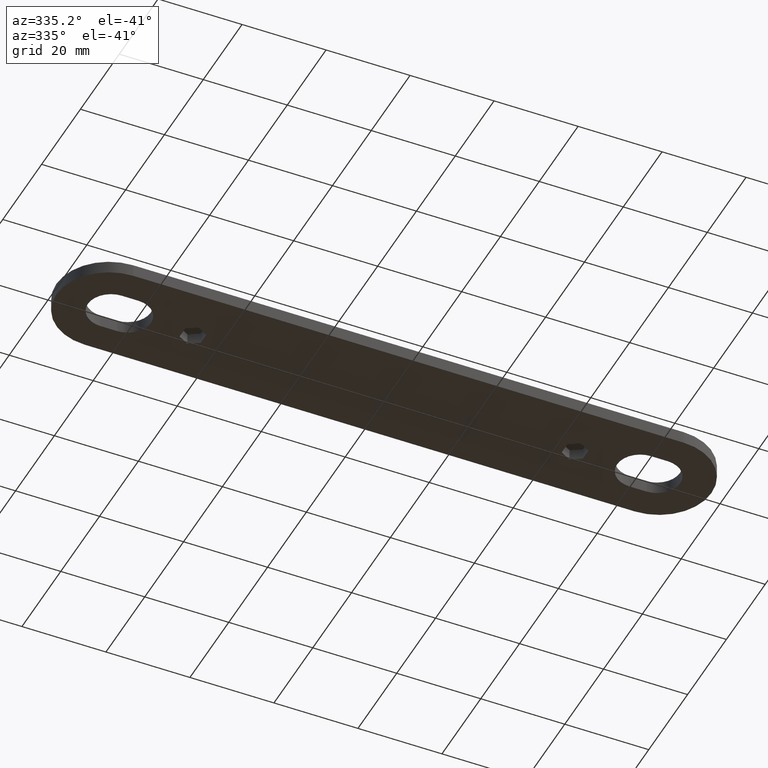
[diagram: clean part render]
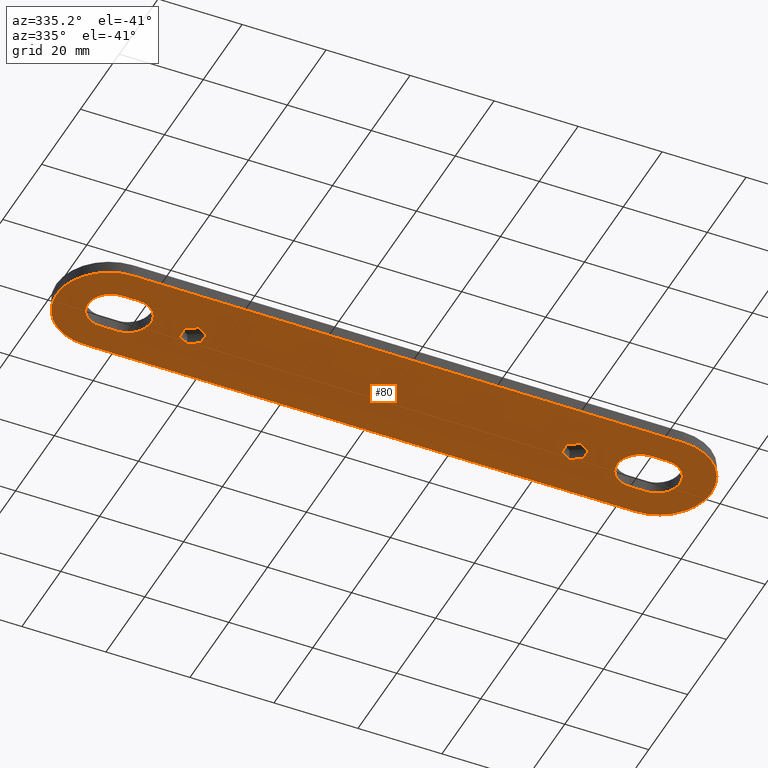
[diagram: same view with one face highlighted and labeled with its STEP entity id]
A machine part, auxiliary view. The second image highlights one B-rep face of the part: STEP entity #80.
In plain terms, the highlighted planar face has unit normal (0, -0, -1).
Its self-contained STEP definition (entity closure, byte-faithful):
#80 = ADVANCED_FACE( '', ( #166, #167, #168, #169, #170 ), #171, .T. );
#166 = FACE_BOUND( '', #323, .T. );
#167 = FACE_BOUND( '', #324, .T. );
#168 = FACE_BOUND( '', #325, .T. );
#169 = FACE_BOUND( '', #326, .T. );
#170 = FACE_OUTER_BOUND( '', #327, .T. );
#171 = PLANE( '', #328 );
#323 = EDGE_LOOP( '', ( #540, #541, #542, #543, #544, #545 ) );
#324 = EDGE_LOOP( '', ( #546, #547, #548, #549, #550, #551 ) );
#325 = EDGE_LOOP( '', ( #552, #553, #554, #555, #556, #557 ) );
#326 = EDGE_LOOP( '', ( #558, #559, #560, #561, #562, #563 ) );
#327 = EDGE_LOOP( '', ( #564, #565, #566, #567, #568, #569 ) );
#328 = AXIS2_PLACEMENT_3D( '', #570, #571, #572 );
#540 = ORIENTED_EDGE( '', *, *, #1089, .F. );
#541 = ORIENTED_EDGE( '', *, *, #1086, .F. );
#542 = ORIENTED_EDGE( '', *, *, #1090, .F. );
#543 = ORIENTED_EDGE( '', *, *, #1091, .F. );
#544 = ORIENTED_EDGE( '', *, *, #1092, .F. );
#545 = ORIENTED_EDGE( '', *, *, #1093, .F. );
#546 = ORIENTED_EDGE( '', *, *, #1094, .F. );
#547 = ORIENTED_EDGE( '', *, *, #1095, .F. );
#548 = ORIENTED_EDGE( '', *, *, #1096, .F. );
#549 = ORIENTED_EDGE( '', *, *, #1097, .F. );
#550 = ORIENTED_EDGE( '', *, *, #1098, .F. );
#551 = ORIENTED_EDGE( '', *, *, #1099, .F. );
#552 = ORIENTED_EDGE( '', *, *, #1100, .F. );
#553 = ORIENTED_EDGE( '', *, *, #1101, .F. );
#554 = ORIENTED_EDGE( '', *, *, #1102, .F. );
#555 = ORIENTED_EDGE( '', *, *, #1103, .F. );
#556 = ORIENTED_EDGE( '', *, *, #1104, .F. );
#557 = ORIENTED_EDGE( '', *, *, #1105, .F. );
#558 = ORIENTED_EDGE( '', *, *, #1106, .T. );
#559 = ORIENTED_EDGE( '', *, *, #1107, .T. );
#560 = ORIENTED_EDGE( '', *, *, #1108, .T. );
#561 = ORIENTED_EDGE( '', *, *, #1109, .T. );
#562 = ORIENTED_EDGE( '', *, *, #1110, .T. );
#563 = ORIENTED_EDGE( '', *, *, #1111, .T. );
#564 = ORIENTED_EDGE( '', *, *, #1079, .T. );
#565 = ORIENTED_EDGE( '', *, *, #1112, .T. );
#566 = ORIENTED_EDGE( '', *, *, #1113, .T. );
#567 = ORIENTED_EDGE( '', *, *, #1114, .T. );
#568 = ORIENTED_EDGE( '', *, *, #1115, .T. );
#569 = ORIENTED_EDGE( '', *, *, #1116, .T. );
#570 = CARTESIAN_POINT( '', ( 65.5000000000000, 8.67361737988403E-015, -4.16333634234434E-014 ) );
#571 = DIRECTION( '', ( 4.59177480789956E-047, -6.12303176911189E-017, -1.00000000000000 ) );
#572 = DIRECTION( '', ( 5.39030083589187E-015, 1.00000000000000, -6.12303176911189E-017 ) );
#1079 = EDGE_CURVE( '', #1306, #1304, #1307, .T. );
#1086 = EDGE_CURVE( '', #1317, #1318, #1319, .T. );
#1089 = EDGE_CURVE( '', #1318, #1322, #1323, .F. );
#1090 = EDGE_CURVE( '', #1324, #1317, #1325, .F. );
#1091 = EDGE_CURVE( '', #1326, #1324, #1327, .F. );
#1092 = EDGE_CURVE( '', #1328, #1326, #1329, .T. );
#1093 = EDGE_CURVE( '', #1322, #1328, #1330, .F. );
#1094 = EDGE_CURVE( '', #1331, #1332, #1333, .T. );
#1095 = EDGE_CURVE( '', #1334, #1331, #1335, .T. );
#1096 = EDGE_CURVE( '', #1336, #1334, #1337, .T. );
#1097 = EDGE_CURVE( '', #1338, #1336, #1339, .T. );
#1098 = EDGE_CURVE( '', #1340, #1338, #1341, .T. );
#1099 = EDGE_CURVE( '', #1332, #1340, #1342, .T. );
#1100 = EDGE_CURVE( '', #1343, #1344, #1345, .T. );
#1101 = EDGE_CURVE( '', #1346, #1343, #1347, .T. );
#1102 = EDGE_CURVE( '', #1348, #1346, #1349, .T. );
#1103 = EDGE_CURVE( '', #1350, #1348, #1351, .T. );
#1104 = EDGE_CURVE( '', #1352, #1350, #1353, .T. );
#1105 = EDGE_CURVE( '', #1344, #1352, #1354, .T. );
#1106 = EDGE_CURVE( '', #1355, #1356, #1357, .T. );
#1107 = EDGE_CURVE( '', #1356, #1358, #1359, .T. );
#1108 = EDGE_CURVE( '', #1358, #1360, #1361, .T. );
#1109 = EDGE_CURVE( '', #1360, #1362, #1363, .F. );
#1110 = EDGE_CURVE( '', #1362, #1364, #1365, .T. );
#1111 = EDGE_CURVE( '', #1364, #1355, #1366, .T. );
#1112 = EDGE_CURVE( '', #1304, #1367, #1368, .T. );
#1113 = EDGE_CURVE( '', #1367, #1369, #1370, .T. );
#1114 = EDGE_CURVE( '', #1369, #1371, #1372, .T. );
#1115 = EDGE_CURVE( '', #1371, #1373, #1374, .T. );
#1116 = EDGE_CURVE( '', #1373, #1306, #1375, .T. );
#1304 = VERTEX_POINT( '', #1634 );
#1306 = VERTEX_POINT( '', #1637 );
#1307 = LINE( '', #1638, #1639 );
#1317 = VERTEX_POINT( '', #1655 );
#1318 = VERTEX_POINT( '', #1656 );
#1319 = LINE( '', #1657, #1658 );
#1322 = VERTEX_POINT( '', #1663 );
#1323 = CIRCLE( '', #1664, 5.50000000000000 );
#1324 = VERTEX_POINT( '', #1665 );
#1325 = CIRCLE( '', #1666, 5.50000000000012 );
#1326 = VERTEX_POINT( '', #1667 );
#1327 = CIRCLE( '', #1668, 5.50000000000000 );
#1328 = VERTEX_POINT( '', #1669 );
#1329 = LINE( '', #1670, #1671 );
#1330 = CIRCLE( '', #1672, 5.50000000000011 );
#1331 = VERTEX_POINT( '', #1673 );
#1332 = VERTEX_POINT( '', #1674 );
#1333 = LINE( '', #1675, #1676 );
#1334 = VERTEX_POINT( '', #1677 );
#1335 = LINE( '', #1678, #1679 );
#1336 = VERTEX_POINT( '', #1680 );
#1337 = LINE( '', #1681, #1682 );
#1338 = VERTEX_POINT( '', #1683 );
#1339 = LINE( '', #1684, #1685 );
#1340 = VERTEX_POINT( '', #1686 );
#1341 = LINE( '', #1687, #1688 );
#1342 = LINE( '', #1689, #1690 );
#1343 = VERTEX_POINT( '', #1691 );
#1344 = VERTEX_POINT( '', #1692 );
#1345 = LINE( '', #1693, #1694 );
#1346 = VERTEX_POINT( '', #1695 );
#1347 = LINE( '', #1696, #1697 );
#1348 = VERTEX_POINT( '', #1698 );
#1349 = LINE( '', #1699, #1700 );
#1350 = VERTEX_POINT( '', #1701 );
#1351 = LINE( '', #1702, #1703 );
#1352 = VERTEX_POINT( '', #1704 );
#1353 = LINE( '', #1705, #1706 );
#1354 = LINE( '', #1707, #1708 );
#1355 = VERTEX_POINT( '', #1709 );
#1356 = VERTEX_POINT( '', #1710 );
#1357 = LINE( '', #1711, #1712 );
#1358 = VERTEX_POINT( '', #1713 );
#1359 = CIRCLE( '', #1714, 5.50000000000006 );
#1360 = VERTEX_POINT( '', #1715 );
#1361 = CIRCLE( '', #1716, 5.50000000000000 );
#1362 = VERTEX_POINT( '', #1717 );
#1363 = LINE( '', #1718, #1719 );
#1364 = VERTEX_POINT( '', #1720 );
#1365 = CIRCLE( '', #1721, 5.50000000000006 );
#1366 = CIRCLE( '', #1722, 5.50000000000000 );
#1367 = VERTEX_POINT( '', #1723 );
#1368 = CIRCLE( '', #1724, 12.5000000000000 );
#1369 = VERTEX_POINT( '', #1725 );
#1370 = CIRCLE( '', #1726, 12.5000000000000 );
#1371 = VERTEX_POINT( '', #1727 );
#1372 = LINE( '', #1728, #1729 );
#1373 = VERTEX_POINT( '', #1730 );
#1374 = CIRCLE( '', #1731, 12.5000000000000 );
#1375 = CIRCLE( '', #1732, 12.5000000000000 );
#1634 = CARTESIAN_POINT( '', ( 65.5000000000001, 12.5000000000000, -4.23987423945824E-014 ) );
#1637 = CARTESIAN_POINT( '', ( -65.4999999999999, 12.5000000000000, -4.23987423945824E-014 ) );
#1638 = CARTESIAN_POINT( '', ( -65.4999999999999, 12.5000000000000, -4.23987423945824E-014 ) );
#1639 = VECTOR( '', #2031, 1000.00000000000 );
#1655 = CARTESIAN_POINT( '', ( -65.0000000000006, 5.50000000000022, -4.19701301707445E-014 ) );
#1656 = CARTESIAN_POINT( '', ( -61.0000000000004, 5.50000000000022, -4.19701301707445E-014 ) );
#1657 = CARTESIAN_POINT( '', ( -61.0000000000004, 5.50000000000022, -4.19701301707445E-014 ) );
#1658 = VECTOR( '', #2038, 1000.00000000000 );
#1663 = CARTESIAN_POINT( '', ( -55.5000000000004, -1.05127479439430E-013, -4.16333634234434E-014 ) );
#1664 = AXIS2_PLACEMENT_3D( '', #2041, #2042, #2043 );
#1665 = CARTESIAN_POINT( '', ( -70.5000000000007, 1.17835833231475E-013, -4.16333634234434E-014 ) );
#1666 = AXIS2_PLACEMENT_3D( '', #2044, #2045, #2046 );
#1667 = CARTESIAN_POINT( '', ( -65.0000000000006, -5.50000000000022, -4.12965966761422E-014 ) );
#1668 = AXIS2_PLACEMENT_3D( '', #2047, #2048, #2049 );
#1669 = CARTESIAN_POINT( '', ( -61.0000000000004, -5.50000000000022, -4.12965966761422E-014 ) );
#1670 = CARTESIAN_POINT( '', ( -65.0000000000006, -5.50000000000022, -4.12965966761422E-014 ) );
#1671 = VECTOR( '', #2050, 1000.00000000000 );
#1672 = AXIS2_PLACEMENT_3D( '', #2051, #2052, #2053 );
#1673 = CARTESIAN_POINT( '', ( 45.5000000000001, 2.88675134594816, -2.79323323176366E-014 ) );
#1674 = CARTESIAN_POINT( '', ( 48.0000000000001, 1.44337567297410, -2.78439539666328E-014 ) );
#1675 = CARTESIAN_POINT( '', ( 50.5000000000002, 1.40946282423116E-014, -2.77555756156289E-014 ) );
#1676 = VECTOR( '', #2054, 1000.00000000000 );
#1677 = CARTESIAN_POINT( '', ( 43.0000000000001, 1.44337567297408, -2.78439539666328E-014 ) );
#1678 = CARTESIAN_POINT( '', ( 48.0000000000001, 4.33012701892223, -2.80207106686404E-014 ) );
#1679 = VECTOR( '', #2055, 1000.00000000000 );
#1680 = CARTESIAN_POINT( '', ( 43.0000000000001, -1.44337567297407, -2.76671972646251E-014 ) );
#1681 = CARTESIAN_POINT( '', ( 43.0000000000001, 1.36782946080771E-014, -2.77555756156289E-014 ) );
#1682 = VECTOR( '', #2056, 1000.00000000000 );
#1683 = CARTESIAN_POINT( '', ( 45.5000000000001, -2.88675134594813, -2.75788189136212E-014 ) );
#1684 = CARTESIAN_POINT( '', ( 48.0000000000001, -4.33012701892221, -2.74904405626174E-014 ) );
#1685 = VECTOR( '', #2057, 1000.00000000000 );
#1686 = CARTESIAN_POINT( '', ( 48.0000000000001, -1.44337567297406, -2.76671972646251E-014 ) );
#1687 = CARTESIAN_POINT( '', ( 50.5000000000001, 2.01048020158368E-014, -2.77555756156289E-014 ) );
#1688 = VECTOR( '', #2058, 1000.00000000000 );
#1689 = CARTESIAN_POINT( '', ( 48.0000000000001, 1.34007388519208E-014, -2.77555756156289E-014 ) );
#1690 = VECTOR( '', #2059, 1000.00000000000 );
#1691 = CARTESIAN_POINT( '', ( -45.5000000000001, 2.88675134594813, -2.79323323176366E-014 ) );
#1692 = CARTESIAN_POINT( '', ( -43.0000000000001, 1.44337567297406, -2.78439539666328E-014 ) );
#1693 = CARTESIAN_POINT( '', ( -40.5000000000001, -1.32699719143736E-014, -2.77555756156289E-014 ) );
#1694 = VECTOR( '', #2060, 1000.00000000000 );
#1695 = CARTESIAN_POINT( '', ( -48.0000000000001, 1.44337567297405, -2.78439539666327E-014 ) );
#1696 = CARTESIAN_POINT( '', ( -43.0000000000001, 4.33012701892220, -2.80207106686404E-014 ) );
#1697 = VECTOR( '', #2061, 1000.00000000000 );
#1698 = CARTESIAN_POINT( '', ( -48.0000000000001, -1.44337567297409, -2.76671972646251E-014 ) );
#1699 = CARTESIAN_POINT( '', ( -48.0000000000001, -1.25593979660721E-014, -2.77555756156289E-014 ) );
#1700 = VECTOR( '', #2062, 1000.00000000000 );
#1701 = CARTESIAN_POINT( '', ( -45.5000000000001, -2.88675134594816, -2.75788189136212E-014 ) );
#1702 = CARTESIAN_POINT( '', ( -43.0000000000001, -4.33012701892223, -2.74904405626174E-014 ) );
#1703 = VECTOR( '', #2063, 1000.00000000000 );
#1704 = CARTESIAN_POINT( '', ( -43.0000000000001, -1.44337567297409, -2.76671972646251E-014 ) );
#1705 = CARTESIAN_POINT( '', ( -40.5000000000001, -1.11100657145130E-014, -2.77555756156289E-014 ) );
#1706 = VECTOR( '', #2064, 1000.00000000000 );
#1707 = CARTESIAN_POINT( '', ( -43.0000000000001, -1.28369537222284E-014, -2.77555756156289E-014 ) );
#1708 = VECTOR( '', #2065, 1000.00000000000 );
#1709 = CARTESIAN_POINT( '', ( 61.0000000000004, -5.50000000000022, -4.12965966761422E-014 ) );
#1710 = CARTESIAN_POINT( '', ( 65.0000000000006, -5.50000000000024, -4.12965966761422E-014 ) );
#1711 = CARTESIAN_POINT( '', ( 65.5000000000000, -5.50000000000024, -4.12965966761422E-014 ) );
#1712 = VECTOR( '', #2066, 999.999999999999 );
#1713 = CARTESIAN_POINT( '', ( 70.5000000000006, -7.05322370062217E-014, -4.16333634234434E-014 ) );
#1714 = AXIS2_PLACEMENT_3D( '', #2067, #2068, #2069 );
#1715 = CARTESIAN_POINT( '', ( 65.0000000000006, 5.50000000000019, -4.19701301707445E-014 ) );
#1716 = AXIS2_PLACEMENT_3D( '', #2070, #2071, #2072 );
#1717 = CARTESIAN_POINT( '', ( 61.0000000000005, 5.50000000000020, -4.19701301707445E-014 ) );
#1718 = CARTESIAN_POINT( '', ( 65.5000000000001, 5.50000000000018, -4.19701301707445E-014 ) );
#1719 = VECTOR( '', #2073, 999.999999999999 );
#1720 = CARTESIAN_POINT( '', ( 55.5000000000004, 1.46898464258634E-013, -4.16333634234434E-014 ) );
#1721 = AXIS2_PLACEMENT_3D( '', #2074, #2075, #2076 );
#1722 = AXIS2_PLACEMENT_3D( '', #2077, #2078, #2079 );
#1723 = CARTESIAN_POINT( '', ( 78.0000000000000, 5.20417042793042E-015, -4.16333634234434E-014 ) );
#1724 = AXIS2_PLACEMENT_3D( '', #2080, #2081, #2082 );
#1725 = CARTESIAN_POINT( '', ( 65.5000000000001, -12.5000000000000, -4.08679844523044E-014 ) );
#1726 = AXIS2_PLACEMENT_3D( '', #2083, #2084, #2085 );
#1727 = CARTESIAN_POINT( '', ( -65.4999999999999, -12.5000000000000, -4.08679844523044E-014 ) );
#1728 = CARTESIAN_POINT( '', ( 65.5000000000001, -12.5000000000000, -4.08679844523044E-014 ) );
#1729 = VECTOR( '', #2086, 1000.00000000000 );
#1730 = CARTESIAN_POINT( '', ( -77.9999999999999, 1.56125112837913E-014, -4.16333634234434E-014 ) );
#1731 = AXIS2_PLACEMENT_3D( '', #2087, #2088, #2089 );
#1732 = AXIS2_PLACEMENT_3D( '', #2090, #2091, #2092 );
#2031 = DIRECTION( '', ( 1.00000000000000, -3.15544362088405E-030, 1.93208815363145E-046 ) );
#2038 = DIRECTION( '', ( 1.00000000000000, 1.15648231731786E-016, -7.08117796935337E-033 ) );
#2041 = CARTESIAN_POINT( '', ( -61.0000000000004, 2.26381413614973E-013, -4.16333634234434E-014 ) );
#2042 = DIRECTION( '', ( 0.000000000000000, 6.12303176911189E-017, 1.00000000000000 ) );
#2043 = DIRECTION( '', ( 0.000000000000000, -1.00000000000000, 6.12303176911189E-017 ) );
#2044 = CARTESIAN_POINT( '', ( -65.0000000000006, 1.17093834628434E-013, -4.16333634234434E-014 ) );
#2045 = DIRECTION( '', ( 0.000000000000000, 6.12303176911189E-017, 1.00000000000000 ) );
#2046 = DIRECTION( '', ( 0.000000000000000, -1.00000000000000, 6.12303176911189E-017 ) );
#2047 = CARTESIAN_POINT( '', ( -65.0000000000006, -2.26381413614973E-013, -4.16333634234434E-014 ) );
#2048 = DIRECTION( '', ( 0.000000000000000, 6.12303176911189E-017, 1.00000000000000 ) );
#2049 = DIRECTION( '', ( 0.000000000000000, -1.00000000000000, 6.12303176911189E-017 ) );
#2050 = DIRECTION( '', ( -1.00000000000000, -1.15648231731786E-016, 7.08117796935337E-033 ) );
#2051 = CARTESIAN_POINT( '', ( -61.0000000000004, -1.04950770296597E-013, -4.16333634234434E-014 ) );
#2052 = DIRECTION( '', ( 0.000000000000000, 6.12303176911189E-017, 1.00000000000000 ) );
#2053 = DIRECTION( '', ( 0.000000000000000, -1.00000000000000, 6.12303176911189E-017 ) );
#2054 = DIRECTION( '', ( 0.866025403784438, -0.500000000000001, 3.06151588455595E-017 ) );
#2055 = DIRECTION( '', ( 0.866025403784438, 0.500000000000001, -3.06151588455595E-017 ) );
#2056 = DIRECTION( '', ( -5.55111512312578E-017, 1.00000000000000, -6.12303176911189E-017 ) );
#2057 = DIRECTION( '', ( -0.866025403784438, 0.500000000000001, -3.06151588455595E-017 ) );
#2058 = DIRECTION( '', ( -0.866025403784438, -0.500000000000001, 3.06151588455595E-017 ) );
#2059 = DIRECTION( '', ( 2.77555756156289E-016, -1.00000000000000, 6.12303176911189E-017 ) );
#2060 = DIRECTION( '', ( 0.866025403784438, -0.500000000000001, 3.06151588455595E-017 ) );
#2061 = DIRECTION( '', ( 0.866025403784438, 0.500000000000001, -3.06151588455595E-017 ) );
#2062 = DIRECTION( '', ( -5.55111512312578E-017, 1.00000000000000, -6.12303176911189E-017 ) );
#2063 = DIRECTION( '', ( -0.866025403784438, 0.500000000000001, -3.06151588455595E-017 ) );
#2064 = DIRECTION( '', ( -0.866025403784438, -0.500000000000001, 3.06151588455595E-017 ) );
#2065 = DIRECTION( '', ( 2.77555756156289E-016, -1.00000000000000, 6.12303176911189E-017 ) );
#2066 = DIRECTION( '', ( 1.00000000000000, -5.39030083589187E-015, 3.30049832632363E-031 ) );
#2067 = CARTESIAN_POINT( '', ( 65.0000000000006, -1.90819582357449E-013, -4.16333634234434E-014 ) );
#2068 = DIRECTION( '', ( 0.000000000000000, 6.12303176911189E-017, 1.00000000000000 ) );
#2069 = DIRECTION( '', ( 0.000000000000000, -1.00000000000000, 6.12303176911189E-017 ) );
#2070 = CARTESIAN_POINT( '', ( 65.0000000000006, 2.11636264069170E-013, -4.16333634234434E-014 ) );
#2071 = DIRECTION( '', ( 0.000000000000000, 6.12303176911189E-017, 1.00000000000000 ) );
#2072 = DIRECTION( '', ( 0.000000000000000, -1.00000000000000, 6.12303176911189E-017 ) );
#2073 = DIRECTION( '', ( 1.00000000000000, -5.39030083589187E-015, 3.30049832632363E-031 ) );
#2074 = CARTESIAN_POINT( '', ( 61.0000000000004, 1.44849410244063E-013, -4.16333634234434E-014 ) );
#2075 = DIRECTION( '', ( 0.000000000000000, 6.12303176911189E-017, 1.00000000000000 ) );
#2076 = DIRECTION( '', ( 0.000000000000000, -1.00000000000000, 6.12303176911189E-017 ) );
#2077 = CARTESIAN_POINT( '', ( 61.0000000000004, -2.43728648374741E-013, -4.16333634234434E-014 ) );
#2078 = DIRECTION( '', ( 0.000000000000000, 6.12303176911189E-017, 1.00000000000000 ) );
#2079 = DIRECTION( '', ( 0.000000000000000, -1.00000000000000, 6.12303176911189E-017 ) );
#2080 = CARTESIAN_POINT( '', ( 65.5000000000000, 8.67361737988403E-015, -4.16333634234434E-014 ) );
#2081 = DIRECTION( '', ( 0.000000000000000, -6.12303176911189E-017, -1.00000000000000 ) );
#2082 = DIRECTION( '', ( -1.60814287233918E-016, 1.00000000000000, -6.12303176911189E-017 ) );
#2083 = CARTESIAN_POINT( '', ( 65.5000000000000, 8.67361737988403E-015, -4.16333634234434E-014 ) );
#2084 = DIRECTION( '', ( 0.000000000000000, -6.12303176911189E-017, -1.00000000000000 ) );
#2085 = DIRECTION( '', ( -1.60814287233918E-016, 1.00000000000000, -6.12303176911189E-017 ) );
#2086 = DIRECTION( '', ( -1.00000000000000, 2.36658271566303E-030, -1.44906611522358E-046 ) );
#2087 = CARTESIAN_POINT( '', ( -65.4999999999999, 5.20417042793042E-015, -4.16333634234434E-014 ) );
#2088 = DIRECTION( '', ( 8.96831017167885E-048, -6.12303176911189E-017, -1.00000000000000 ) );
#2089 = DIRECTION( '', ( 9.49408737391240E-016, 1.00000000000000, -6.12303176911189E-017 ) );
#2090 = CARTESIAN_POINT( '', ( -65.4999999999999, 5.20417042793042E-015, -4.16333634234434E-014 ) );
#2091 = DIRECTION( '', ( 8.96831017167884E-048, -6.12303176911189E-017, -1.00000000000000 ) );
#2092 = DIRECTION( '', ( 9.49408737391241E-016, 1.00000000000000, -6.12303176911189E-017 ) );